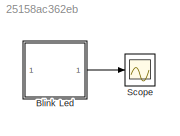
MODEL slx_25158ac362eb
KIND model
CONFIG AbsTol = auto
CONFIG EnableMultiTasking = off
CONFIG FixedStep = auto
CONFIG MaxStep = 0.1
CONFIG MinStep = auto
CONFIG RelTol = 1e-3
CONFIG SampleTimeConstraint = Unconstrained
CONFIG SolverName = VariableStepDiscrete
CONFIG StartTime = 0.0
CONFIG StopTime = 10.0
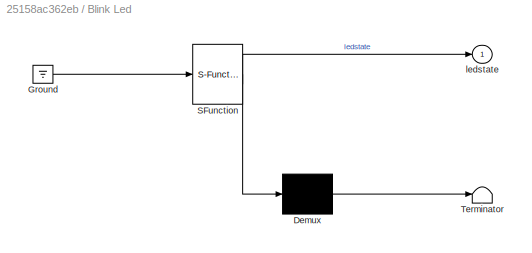
BLOCK [SubSystem] Blink Led
  ErrorFcn = Stateflow.Translate.translate
  PermitHierarchicalResolution = ExplicitOnly
  SFBlockType = Chart
  TreatAsAtomicUnit = on
BLOCK [Demux] Blink Led/ Demux 
  Outputs = 1
BLOCK [Ground] Blink Led/ Ground 
BLOCK [S-Function] Blink Led/ SFunction 
  EnableBusSupport = on
  FunctionName = sf_sfun
  PortCounts = [1 2]
  SFcnIsStateOwnerBlock = off
  SFunctionDeploymentMode = off
  Tag = Stateflow S-Function 3
BLOCK [Terminator] Blink Led/ Terminator 
BLOCK [Outport] Blink Led/ledstate
BLOCK [Scope] Scope
  Floating = off
  NumInputPorts = 1
  ScopeSpecificationString = Simulink.scopes.TimeScopeBlockCfg('CurrentConfiguration', extmgr.ConfigurationSet(extmgr.Configuration('Core','General UI',true),extmgr.Configuration('Core','Source UI',true),extmgr.Configuration('Sources','WiredSimulink',true),extmgr.Configuration('Visuals','Time Domain',true,'SerializedDisplays',{struct('MinYLimReal','-0.08824','MaxYLimReal','1.03922','YLabelReal','','MinYLimMag','0.00000','MaxY...<+1405ch>
LINE Blink Led:1 -> Scope:1
CHART Blink Led states=2 transitions=3
  STATE_LABEL 'ledoff\nen:\nledstate=0;'
  STATE_LABEL 'ledon\nen:\nledstate=1;'
CHART  states=0 transitions=0
